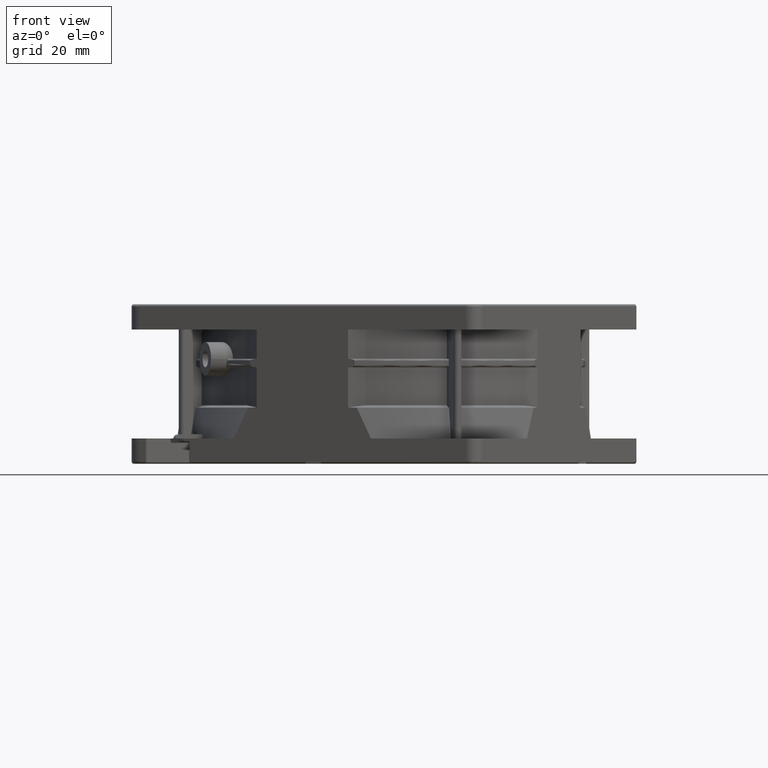
[diagram: clean part render]
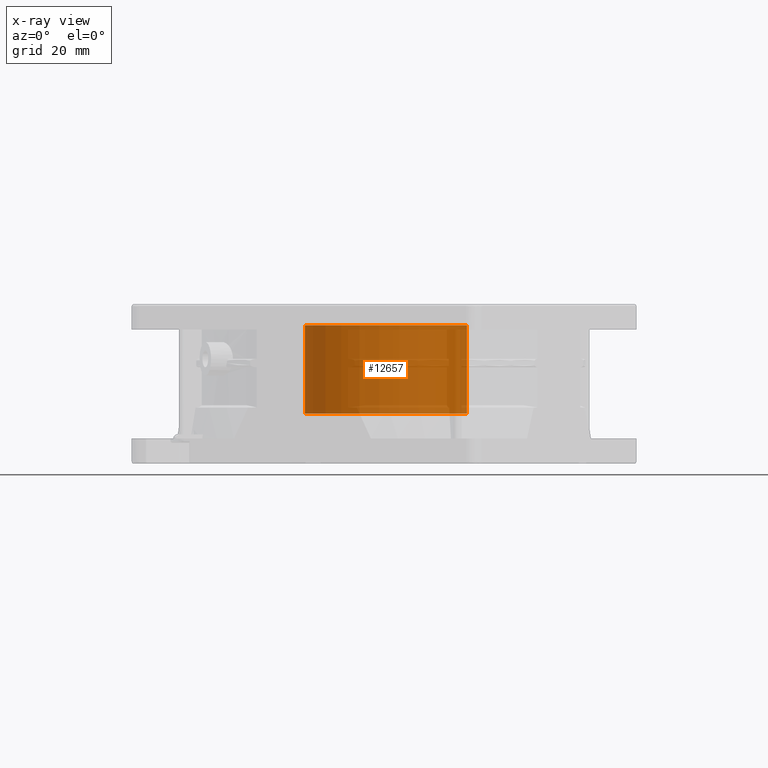
[diagram: x-ray — body ghosted, one internal face saturated and labeled with its STEP entity id]
A machine part, front view, then the same camera in x-ray: the body is ghosted and one INTERNAL B-rep face — a face not visible from any outside direction — is saturated and labeled: STEP entity #12657.
In plain terms, the highlighted cylindrical surface (partial cylindrical patch) has radius 19.8 mm, axis along (-0, -0, 1).
Its self-contained STEP definition (entity closure, byte-faithful):
#1640 = VERTEX_POINT ( 'NONE', #51726 ) ;
#2952 = VECTOR ( 'NONE', #53631, 1000.000000000000000 ) ;
#4511 = LINE ( 'NONE', #13234, #2952 ) ;
#5182 = CARTESIAN_POINT ( 'NONE',  ( 0.0000000000000000000, 0.0000000000000000000, -23.80000000000000100 ) ) ;
#6585 = VERTEX_POINT ( 'NONE', #7589 ) ;
#6760 = CYLINDRICAL_SURFACE ( 'NONE', #9296, 19.80000000000000100 ) ;
#7589 = CARTESIAN_POINT ( 'NONE',  ( -19.80000000000000100, 2.424800662311759400E-015, -23.80000000000000100 ) ) ;
#7747 = EDGE_LOOP ( 'NONE', ( #37009, #28279, #46583, #63806 ) ) ;
#8537 = DIRECTION ( 'NONE',  ( 1.000000000000000000, 0.0000000000000000000, 0.0000000000000000000 ) ) ;
#9296 = AXIS2_PLACEMENT_3D ( 'NONE', #59451, #38687, #8537 ) ;
#10373 = EDGE_CURVE ( 'NONE', #38853, #15002, #50290, .T. ) ;
#12657 = ADVANCED_FACE ( 'NONE', ( #60412 ), #6760, .F. ) ;
#13234 = CARTESIAN_POINT ( 'NONE',  ( -19.80000000000000100, 2.424800662311759400E-015, -23.80000000000000100 ) ) ;
#14550 = CARTESIAN_POINT ( 'NONE',  ( 19.80000000000000100, 0.0000000000000000000, -2.799999999999999800 ) ) ;
#15002 = VERTEX_POINT ( 'NONE', #14550 ) ;
#15243 = DIRECTION ( 'NONE',  ( 0.0000000000000000000, 0.0000000000000000000, 1.000000000000000000 ) ) ;
#15455 = DIRECTION ( 'NONE',  ( 1.000000000000000000, 0.0000000000000000000, 0.0000000000000000000 ) ) ;
#16816 = DIRECTION ( 'NONE',  ( -1.000000000000000000, 0.0000000000000000000, 0.0000000000000000000 ) ) ;
#18072 = EDGE_CURVE ( 'NONE', #6585, #38853, #4511, .T. ) ;
#18917 = CARTESIAN_POINT ( 'NONE',  ( -19.80000000000000100, 2.424800662311759800E-015, -2.799999999999999800 ) ) ;
#26581 = LINE ( 'NONE', #50837, #65339 ) ;
#27733 = AXIS2_PLACEMENT_3D ( 'NONE', #31834, #57257, #16816 ) ;
#28279 = ORIENTED_EDGE ( 'NONE', *, *, #18072, .T. ) ;
#31834 = CARTESIAN_POINT ( 'NONE',  ( 0.0000000000000000000, 0.0000000000000000000, -2.799999999999999800 ) ) ;
#35986 = DIRECTION ( 'NONE',  ( 0.0000000000000000000, 0.0000000000000000000, 1.000000000000000000 ) ) ;
#37009 = ORIENTED_EDGE ( 'NONE', *, *, #45893, .F. ) ;
#38687 = DIRECTION ( 'NONE',  ( 0.0000000000000000000, 0.0000000000000000000, 1.000000000000000000 ) ) ;
#38853 = VERTEX_POINT ( 'NONE', #18917 ) ;
#41016 = EDGE_CURVE ( 'NONE', #1640, #15002, #26581, .T. ) ;
#45893 = EDGE_CURVE ( 'NONE', #6585, #1640, #57216, .T. ) ;
#46583 = ORIENTED_EDGE ( 'NONE', *, *, #10373, .T. ) ;
#50290 = CIRCLE ( 'NONE', #27733, 19.79999999999999700 ) ;
#50837 = CARTESIAN_POINT ( 'NONE',  ( 19.80000000000000100, 0.0000000000000000000, -23.80000000000000100 ) ) ;
#51726 = CARTESIAN_POINT ( 'NONE',  ( 19.80000000000000100, 0.0000000000000000000, -23.80000000000000100 ) ) ;
#53631 = DIRECTION ( 'NONE',  ( 0.0000000000000000000, 0.0000000000000000000, 1.000000000000000000 ) ) ;
#57216 = CIRCLE ( 'NONE', #61830, 19.80000000000000100 ) ;
#57257 = DIRECTION ( 'NONE',  ( -0.0000000000000000000, -0.0000000000000000000, 1.000000000000000000 ) ) ;
#59451 = CARTESIAN_POINT ( 'NONE',  ( 0.0000000000000000000, 0.0000000000000000000, -23.80000000000000100 ) ) ;
#60412 = FACE_OUTER_BOUND ( 'NONE', #7747, .T. ) ;
#61830 = AXIS2_PLACEMENT_3D ( 'NONE', #5182, #15243, #15455 ) ;
#63806 = ORIENTED_EDGE ( 'NONE', *, *, #41016, .F. ) ;
#65339 = VECTOR ( 'NONE', #35986, 1000.000000000000000 ) ;